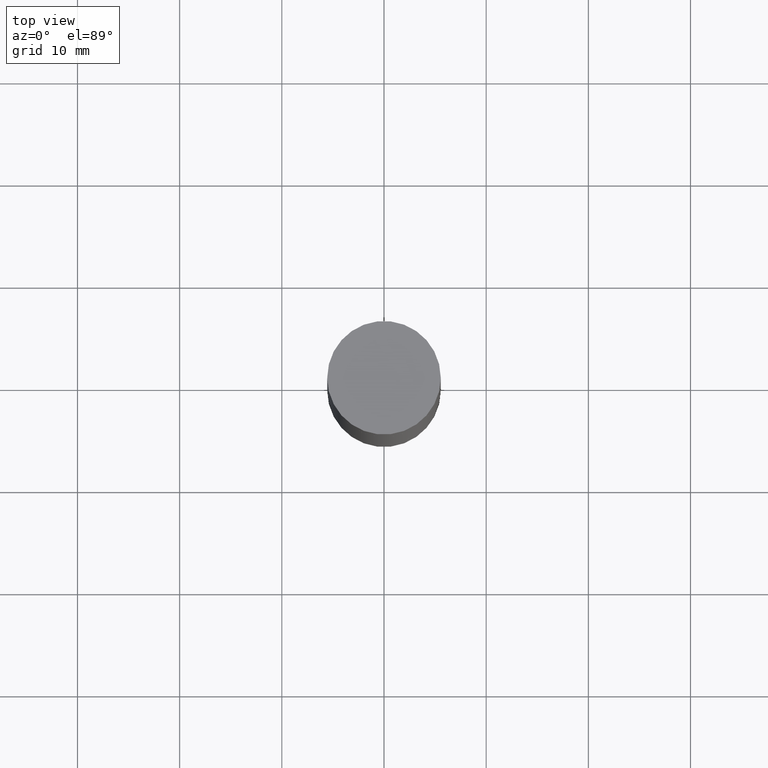
[diagram: clean part render]
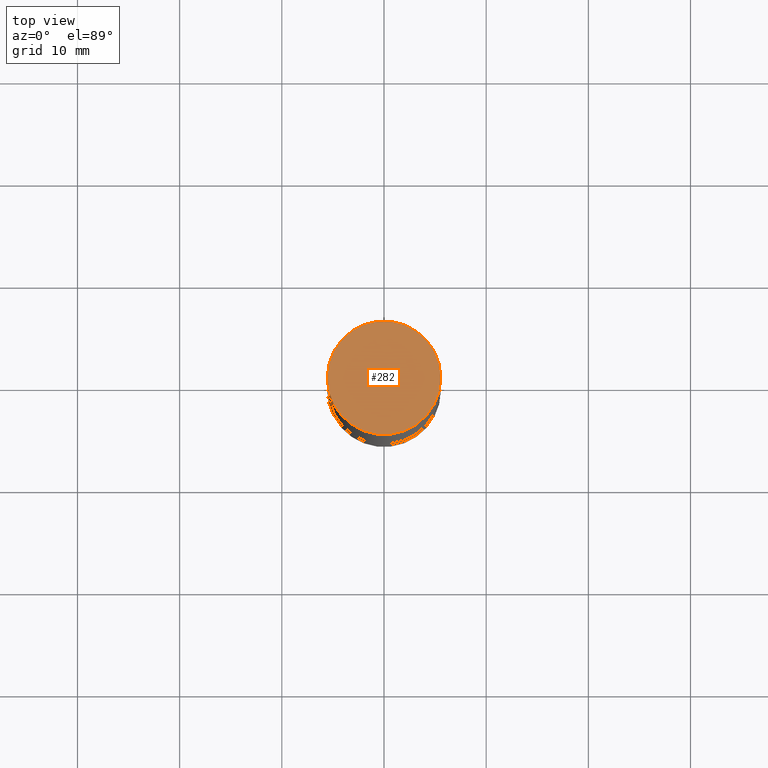
[diagram: same view with one face highlighted and labeled with its STEP entity id]
A machine part, top view. The second image highlights one B-rep face of the part: STEP entity #282.
In plain terms, the highlighted planar face has unit normal (0, 0, 1).
Its self-contained STEP definition (entity closure, byte-faithful):
#10 = DIRECTION ( 'NONE',  ( 1.000000000000000000, -6.982962677686266711E-15, 0.000000000000000000 ) ) ;
#64 = CARTESIAN_POINT ( 'NONE',  ( 0.2187500000000000000, -1.525585610769535201E-15, 5.463695987328526437E-16 ) ) ;
#66 = CIRCLE ( 'NONE', #435, 0.2187500000000000000 ) ;
#109 = ORIENTED_EDGE ( 'NONE', *, *, #421, .T. ) ;
#157 = CARTESIAN_POINT ( 'NONE',  ( 6.725039217009124520E-29, 1.937474974335603146E-18, 5.463695987328526437E-16 ) ) ;
#195 = AXIS2_PLACEMENT_3D ( 'NONE', #214, #409, #400 ) ;
#204 = VERTEX_POINT ( 'NONE', #315 ) ;
#205 = PLANE ( 'NONE',  #195 ) ;
#214 = CARTESIAN_POINT ( 'NONE',  ( 1.527523085743937699E-15, 0.2187500000000000000, -5.463695987328526437E-16 ) ) ;
#260 = FACE_OUTER_BOUND ( 'NONE', #651, .T. ) ;
#282 = ADVANCED_FACE ( 'NONE', ( #260 ), #205, .T. ) ;
#315 = CARTESIAN_POINT ( 'NONE',  ( -0.2187500000000000000, 5.211692063408169128E-16, 5.463695987328561936E-16 ) ) ;
#326 = EDGE_CURVE ( 'NONE', #204, #359, #647, .T. ) ;
#343 = AXIS2_PLACEMENT_3D ( 'NONE', #157, #567, #10 ) ;
#359 = VERTEX_POINT ( 'NONE', #64 ) ;
#400 = DIRECTION ( 'NONE',  ( -1.000000000000000000, 6.982962677686265922E-15, -9.839502134516470631E-33 ) ) ;
#409 = DIRECTION ( 'NONE',  ( 2.438088387897959769E-29, 3.492890411551753071E-15, 1.000000000000000000 ) ) ;
#410 = ORIENTED_EDGE ( 'NONE', *, *, #326, .T. ) ;
#421 = EDGE_CURVE ( 'NONE', #359, #204, #66, .T. ) ;
#435 = AXIS2_PLACEMENT_3D ( 'NONE', #579, #652, #486 ) ;
#486 = DIRECTION ( 'NONE',  ( 1.000000000000000000, -6.982962677686266711E-15, 0.000000000000000000 ) ) ;
#567 = DIRECTION ( 'NONE',  ( 2.445468806185136597E-29, 3.492890411551752677E-15, 1.000000000000000000 ) ) ;
#579 = CARTESIAN_POINT ( 'NONE',  ( 6.725039217009124520E-29, 1.937474974335603146E-18, 5.463695987328526437E-16 ) ) ;
#647 = CIRCLE ( 'NONE', #343, 0.2187500000000000000 ) ;
#651 = EDGE_LOOP ( 'NONE', ( #109, #410 ) ) ;
#652 = DIRECTION ( 'NONE',  ( 2.445468806185136597E-29, 3.492890411551752677E-15, 1.000000000000000000 ) ) ;